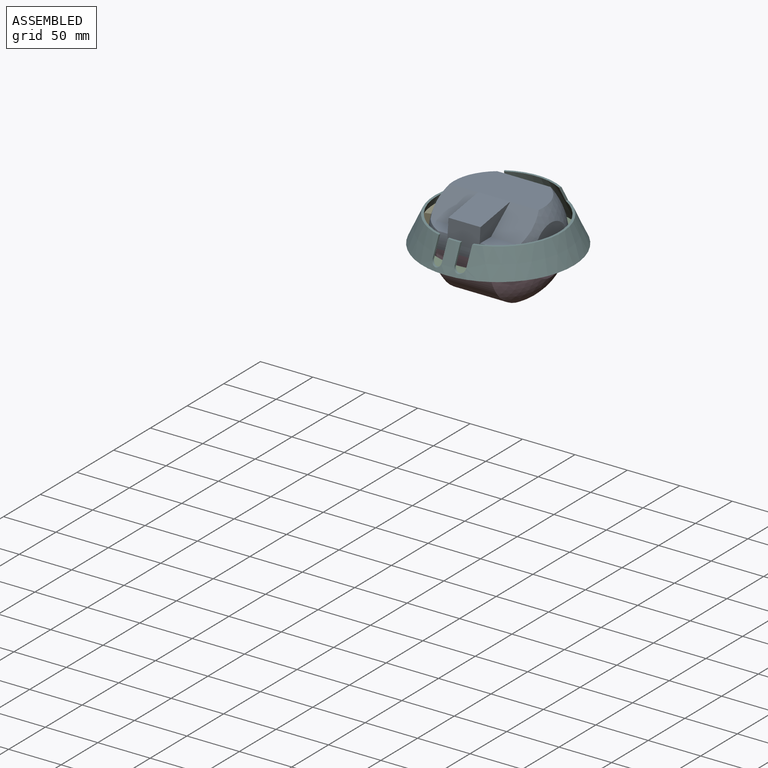
[diagram: assembled view]
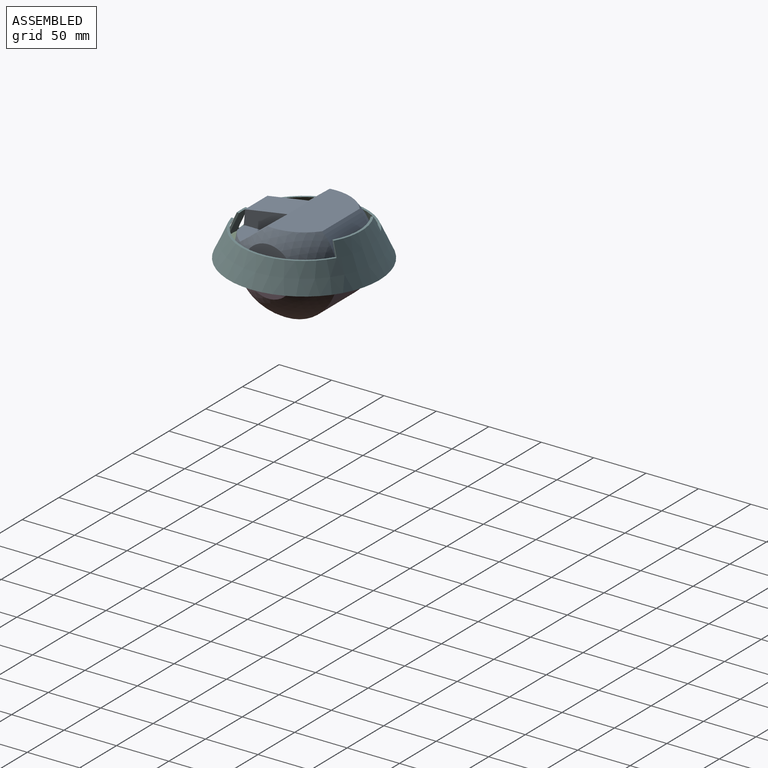
[diagram: assembled view, second angle]
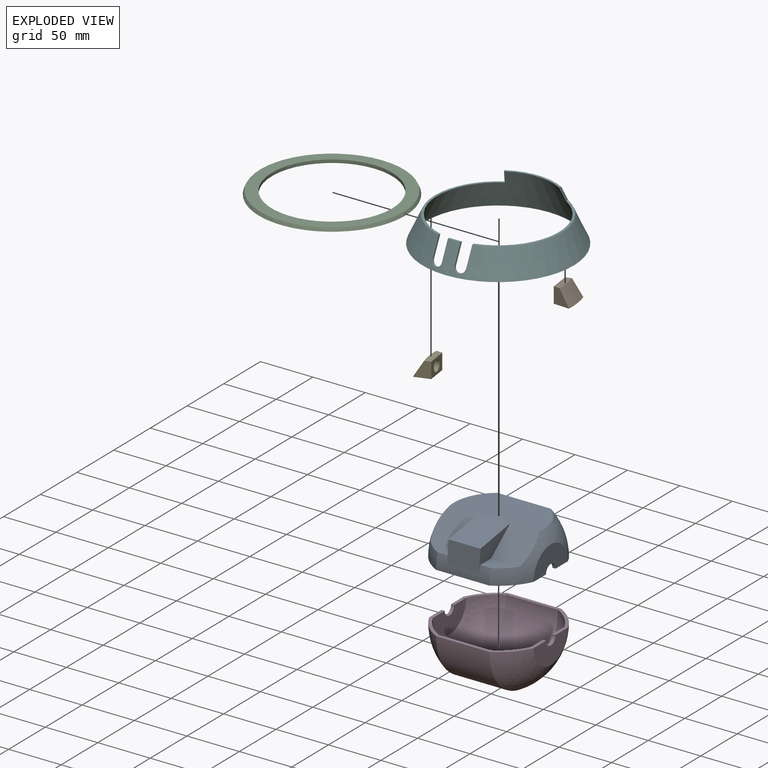
[diagram: exploded view]
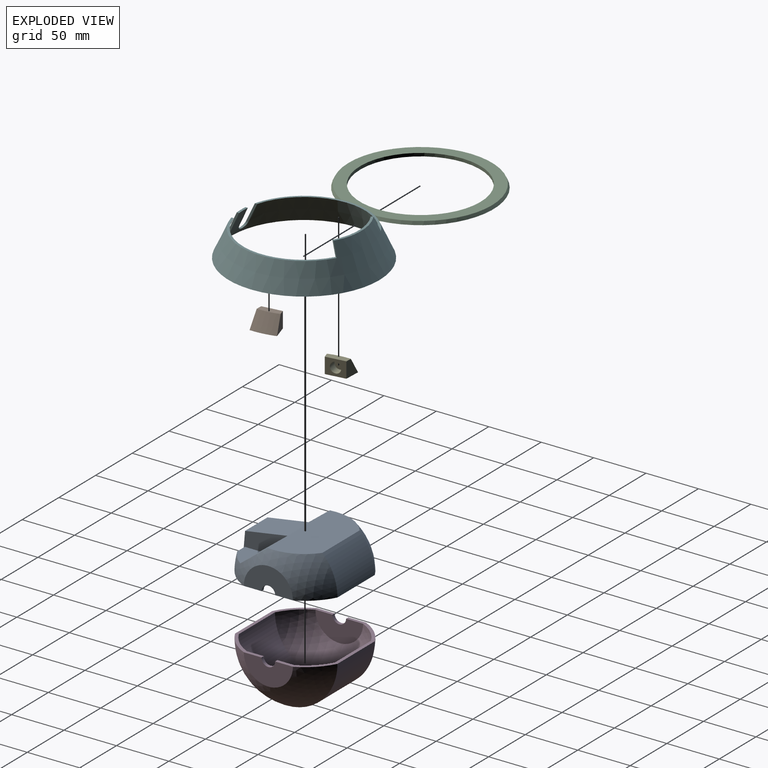
[diagram: exploded view, second angle]
ASSEMBLY  parts=6 mates=6
PART A: 34 faces, bbox 110.1x97.7x44.4 mm
  f0: cylinder r=6.5mm len=13mm, axis (1,0,0), area 61.3mm2, adj f1,f5,f18,f22
  f1: plane 99.62x42.33mm, normal (0,0,-1), area 454.9mm2, adj f0,f2,f3,f4,f5,f6,f8,f19
  f2: sphere r=55.05mm, area 2385.4mm2, adj f1,f5,f7,f8,f9,f10,f11,f18
  f3: sphere r=55.05mm, area 2385.4mm2, adj f1,f4,f7,f8,f11,f12,f13,f18
  f4: plane 46.88x23.44mm, normal (1,0,0), area 796.7mm2, adj f1,f3,f6,f18
  f5: plane 46.88x23.44mm, normal (-1,0,0), area 796.7mm2, adj f0,f1,f2,f18
  f6: cylinder r=6.5mm len=13mm, axis (1,0,0), area 61.3mm2, adj f1,f4,f18,f21
  f7: cylinder r=48.83mm len=50.83mm, axis (-1,0,0), area 544.4mm2, adj f2,f3,f9,f12,f14,f15,f17,f18
  f8: cylinder r=48.83mm len=50.83mm, axis (-1,0,0), area 1956.5mm2, adj f1,f2,f3,f11
  f9: plane 27.13x14.6mm, normal (0,0,1), area 290.1mm2, adj f2,f7,f10,f15
  f10: plane 30.27x26.2mm, normal (0,-0.61,0.79), area 970mm2, adj f2,f9,f11,f15
  f11: plane 85.59x40.33mm, normal (0,0,1), area 3090.7mm2, adj f2,f3,f8,f10,f13,f16
  f12: plane 27.13x14.6mm, normal (0,0,1), area 290.1mm2, adj f3,f7,f13,f14
  f13: plane 30.27x26.2mm, normal (0,-0.61,0.79), area 970mm2, adj f3,f11,f12,f14
  f14: plane 42.25x26.47mm, normal (1,0,0), area 435.7mm2, adj f7,f12,f13,f16,f17
  f15: plane 42.25x26.47mm, normal (-1,0,0), area 435.7mm2, adj f7,f9,f10,f16,f17
  f16: plane 40.5x30.5mm, normal (0,-0.16,0.99), area 1251.3mm2, adj f11,f14,f15,f17
  f17: plane 30.5x19.92mm, normal (0,-1,0.09), area 609.8mm2, adj f7,f14,f15,f16
  f18: plane 99.62x42.33mm, normal (0,0,-1), area 454.9mm2, adj f0,f2,f3,f4,f5,f6,f7,f19
  f19: sphere r=52.05mm, area 1889.4mm2, adj f1,f18,f22,f23,f24,f25,f26,f27
  f20: sphere r=52.05mm, area 1889.4mm2, adj f1,f18,f21,f23,f24,f27,f28,f29
  f21: plane 45.52x22.76mm, normal (-1,0,0), area 747.3mm2, adj f1,f6,f18,f20
  f22: plane 45.52x22.76mm, normal (1,0,0), area 747.3mm2, adj f0,f1,f18,f19
  f23: cylinder r=45.83mm len=49.34mm, axis (-1,0,0), area 474.3mm2, adj f18,f19,f20,f25,f28,f30,f31,f33
  f24: cylinder r=45.83mm len=49.34mm, axis (-1,0,0), area 1722.2mm2, adj f1,f19,f20,f27
  f25: plane 27.96x13.35mm, normal (0,0,-1), area 283.9mm2, adj f19,f23,f26,f31
  f26: plane 31.65x26.2mm, normal (0,0.61,-0.79), area 1014.2mm2, adj f19,f25,f27,f31
  f27: plane 82.68x38.83mm, normal (0,0,-1), area 2831mm2, adj f19,f20,f24,f26,f29,f30,f31,f32
  f28: plane 27.96x13.35mm, normal (0,0,-1), area 283.9mm2, adj f20,f23,f29,f30
  f29: plane 31.65x26.2mm, normal (0,0.61,-0.79), area 1014.2mm2, adj f20,f27,f28,f30
  f30: plane 40.3x23.85mm, normal (-1,0,0), area 414.9mm2, adj f23,f27,f28,f29,f32,f33
  f31: plane 40.3x23.85mm, normal (1,0,0), area 414.9mm2, adj f23,f25,f26,f27,f32,f33
  f32: plane 37.96x24.5mm, normal (0,0.16,-0.99), area 942mm2, adj f27,f30,f31,f33
  f33: plane 24.5x17.71mm, normal (0,1,-0.09), area 435.6mm2, adj f23,f30,f31,f32
PART B: 8 faces, bbox 15.8x24.2x15 mm
  f0: plane 21.03x6.59mm, normal (0,0,1), area 126.5mm2, adj f2,f3,f4,f5
  f1: plane 24.24x15.83mm, normal (0,0,-1), area 336.8mm2, adj f2,f3,f4,f5
  f2: cone r=60.55mm half-angle=31.6deg, axis (0,0,-1), area 400.8mm2, adj f0,f1,f3,f4
  f3: plane 15x14.77mm, normal (-0.17,0.98,0), area 155.7mm2, adj f0,f1,f2,f5
  f4: plane 15x14.77mm, normal (-0.17,-0.98,0), area 155.7mm2, adj f0,f1,f2,f5
  f5: plane 19.03x15mm, normal (-1,0,0), area 206.9mm2, adj f0,f1,f3,f4,f6
  f6: cylinder r=5mm len=10mm, axis (-1,0,0), area 249.3mm2, adj f5,f7
  f7: plane 10x10mm, normal (-1,0,0), area 78.5mm2, adj f6
PART C: 4 faces, bbox 139.6x139.6x3 mm
  f0: plane 136.82x136.82mm, normal (0,0,1), area 4315.8mm2, adj f2,f3
  f1: plane 139.59x139.59mm, normal (0,0,-1), area 4917.7mm2, adj f2,f3
  f2: cone r=68.41mm half-angle=24.8deg, axis (0,0,-1), area 1434.9mm2, adj f0,f1
  f3: cylinder r=57.5mm len=115mm, axis (0,0,1), area 1083.8mm2, adj f0,f1
PART D: 15 faces, bbox 110.1x97.7x48.9 mm
  f0: cylinder r=6.5mm len=13mm, axis (1,0,0), area 61.3mm2, adj f1,f5,f8,f12
  f1: plane 99.62x42.33mm, normal (0,0,1), area 454.9mm2, adj f0,f2,f3,f4,f5,f6,f7,f9
  f2: sphere r=55.05mm, area 4219.2mm2, adj f1,f5,f7,f8
  f3: sphere r=55.05mm, area 4219.2mm2, adj f1,f4,f7,f8
  f4: plane 46.88x23.44mm, normal (1,0,0), area 796.7mm2, adj f1,f3,f6,f8
  f5: plane 46.88x23.44mm, normal (-1,0,0), area 796.7mm2, adj f0,f1,f2,f8
  f6: cylinder r=6.5mm len=13mm, axis (1,0,0), area 61.3mm2, adj f1,f4,f8,f11
  f7: cylinder r=48.83mm len=97.67mm, axis (-1,0,0), area 6818.6mm2, adj f1,f2,f3,f8,f14
  f8: plane 99.62x42.33mm, normal (0,0,1), area 454.9mm2, adj f0,f2,f3,f4,f5,f6,f7,f9
  f9: sphere r=52.05mm, area 3620.5mm2, adj f1,f8,f12,f13
  f10: sphere r=52.05mm, area 3620.5mm2, adj f1,f8,f11,f13
  f11: plane 45.52x22.76mm, normal (-1,0,0), area 747.3mm2, adj f1,f6,f8,f10
  f12: plane 45.52x22.76mm, normal (1,0,0), area 747.3mm2, adj f0,f1,f8,f9
  f13: cylinder r=45.83mm len=91.67mm, axis (-1,0,0), area 6122.7mm2, adj f1,f8,f9,f10,f14
  f14: cylinder r=17.5mm len=35mm, axis (0,0,1), area 342.1mm2, adj f7,f13
PART E: same geometry as B
PART F: 15 faces, bbox 144.1x144.1x37.8 mm
  f0: plane 110.42x44.33mm, normal (0,0,1), area 305.9mm2, adj f1,f4,f11,f13
  f1: cone r=60.33mm half-angle=24.8deg, axis (0,0,-1), area 11911.8mm2, adj f0,f2,f3,f5,f6,f7,f8,f9
  f2: plane 12x2.51mm, normal (0,0,1), area 26.5mm2, adj f1,f4,f8,f10
  f3: plane 110.42x44.33mm, normal (0,0,1), area 305.9mm2, adj f1,f4,f7,f14
  f4: cone r=58.13mm half-angle=24.8deg, axis (0,0,-1), area 11494.5mm2, adj f0,f2,f3,f5,f6,f7,f8,f9
  f5: plane 144x144mm, normal (0,0,-1), area 981.5mm2, adj f1,f4
  f6: cylinder r=5mm len=10mm, axis (0,1,0), area 35.1mm2, adj f1,f4,f7,f8
  f7: plane 17.39x10.66mm, normal (-1,0,0), area 39.3mm2, adj f1,f3,f4,f6
  f8: plane 17.3x10.27mm, normal (1,0,0), area 38.2mm2, adj f1,f2,f4,f6
  f9: cylinder r=5mm len=10mm, axis (0,1,0), area 35.1mm2, adj f1,f4,f10,f11
  f10: plane 17.3x10.27mm, normal (-1,0,0), area 38.2mm2, adj f1,f2,f4,f9
  f11: plane 17.39x10.66mm, normal (1,0,0), area 39.3mm2, adj f0,f1,f4,f9
  f12: plane 54.6x9.22mm, normal (0,0,1), area 123.4mm2, adj f1,f4,f13,f14
  f13: plane 12.41x6.88mm, normal (-0.87,-0.5,0), area 27.4mm2, adj f0,f1,f4,f12
  f14: plane 12.41x6.88mm, normal (0.87,-0.5,0), area 27.4mm2, adj f1,f3,f4,f12
PLACE A t=(-6.77,-29.95,10.98)mm
PLACE B rot(axis=(0,0,1),7.4deg) t=(-6.62,-30.67,6.74)mm
PLACE C rot(axis=(0,0,1),7.4deg) t=(-6.62,-30.67,3.74)mm
PLACE D t=(-6.77,-29.95,10.98)mm
PLACE E rot(axis=(0,0,-1),172.2deg) t=(-6.62,-30.67,6.61)mm
PLACE F t=(-6.62,-30.67,3.74)mm fixed
MATE cylindrical E.f2 <-> C.f2  axis (0,0,-1) through (-6.62,-30.67,6.61)mm
MATE cylindrical B.f2 <-> C.f2  axis (0,0,-1) through (-6.62,-30.67,6.74)mm
MATE fastened D.f8 <-> A.f1  axis (0,0,1) through (-6.77,5.37,10.98)mm
MATE cylindrical F.f1 <-> C.f2  axis (0,0,-1) through (-6.62,-30.67,3.74)mm
MATE cylindrical E.f2 <-> C.f2  axis (0,0,-1) through (-6.62,-30.67,6.61)mm
MATE planar C.f2 <-> F.f1  axis (0,0,-1) through (-6.62,-30.67,3.74)mm
